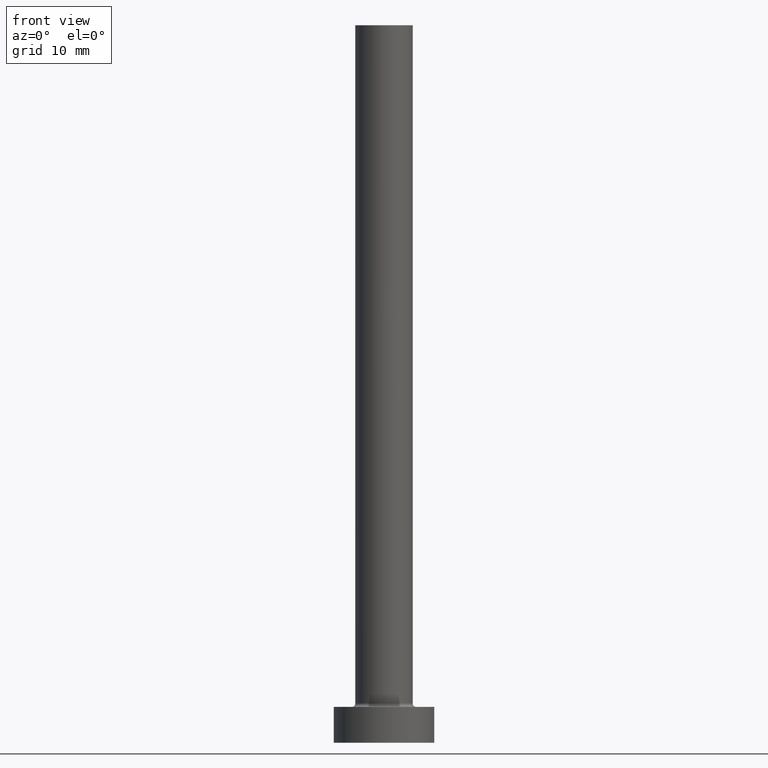
[diagram: clean part render]
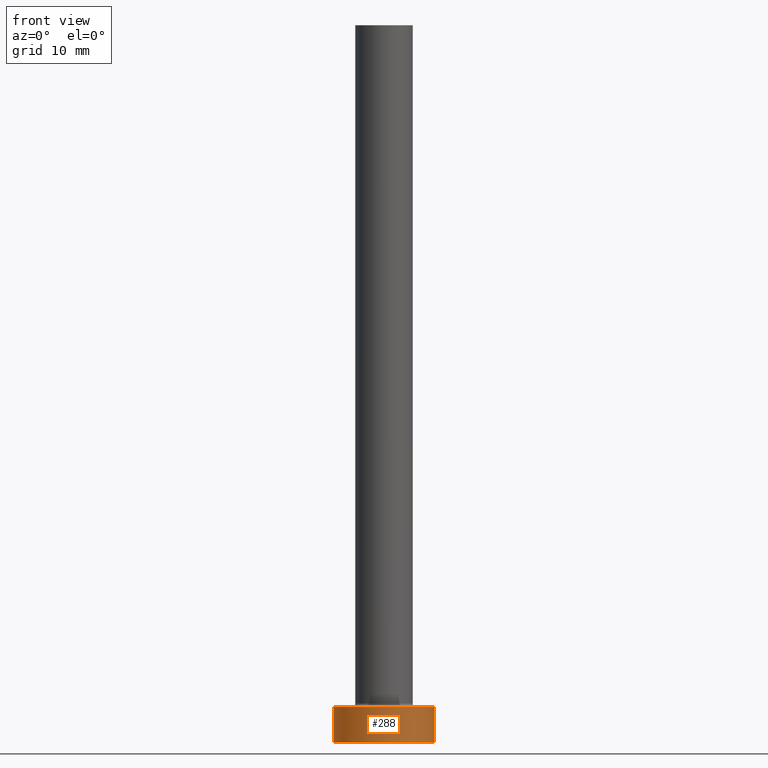
[diagram: same view with one face highlighted and labeled with its STEP entity id]
A machine part, front view. The second image highlights one B-rep face of the part: STEP entity #288.
In plain terms, the highlighted cylindrical surface (partial cylindrical patch) has radius 7 mm, axis along (-0, -0, -1).
Its self-contained STEP definition (entity closure, byte-faithful):
#5 = DIRECTION ( 'NONE',  ( -0.000000000000000000, -0.000000000000000000, -1.000000000000000000 ) ) ;
#10 = AXIS2_PLACEMENT_3D ( 'NONE', #457, #383, #198 ) ;
#19 = AXIS2_PLACEMENT_3D ( 'NONE', #378, #242, #78 ) ;
#22 = EDGE_LOOP ( 'NONE', ( #165, #113, #72, #306 ) ) ;
#27 = VECTOR ( 'NONE', #5, 1000.000000000000000 ) ;
#38 = CIRCLE ( 'NONE', #278, 7.000000000000000000 ) ;
#64 = DIRECTION ( 'NONE',  ( 0.000000000000000000, 0.000000000000000000, 1.000000000000000000 ) ) ;
#66 = EDGE_CURVE ( 'NONE', #237, #82, #185, .T. ) ;
#72 = ORIENTED_EDGE ( 'NONE', *, *, #66, .T. ) ;
#78 = DIRECTION ( 'NONE',  ( -1.000000000000000000, 0.000000000000000000, 0.000000000000000000 ) ) ;
#82 = VERTEX_POINT ( 'NONE', #425 ) ;
#88 = EDGE_CURVE ( 'NONE', #436, #223, #396, .T. ) ;
#102 = CARTESIAN_POINT ( 'NONE',  ( -7.000000000000000000, 0.000000000000000000, 5.000000000000000000 ) ) ;
#113 = ORIENTED_EDGE ( 'NONE', *, *, #230, .F. ) ;
#126 = CARTESIAN_POINT ( 'NONE',  ( 0.000000000000000000, 0.000000000000000000, 5.000000000000000000 ) ) ;
#147 = CYLINDRICAL_SURFACE ( 'NONE', #19, 7.000000000000000000 ) ;
#163 = EDGE_CURVE ( 'NONE', #82, #223, #217, .T. ) ;
#164 = DIRECTION ( 'NONE',  ( 1.000000000000000000, 0.000000000000000000, 0.000000000000000000 ) ) ;
#165 = ORIENTED_EDGE ( 'NONE', *, *, #88, .F. ) ;
#182 = DIRECTION ( 'NONE',  ( -0.000000000000000000, -0.000000000000000000, -1.000000000000000000 ) ) ;
#185 = LINE ( 'NONE', #395, #27 ) ;
#192 = VECTOR ( 'NONE', #182, 1000.000000000000000 ) ;
#198 = DIRECTION ( 'NONE',  ( 1.000000000000000000, 0.000000000000000000, 0.000000000000000000 ) ) ;
#217 = CIRCLE ( 'NONE', #10, 7.000000000000000000 ) ;
#223 = VERTEX_POINT ( 'NONE', #433 ) ;
#230 = EDGE_CURVE ( 'NONE', #237, #436, #38, .T. ) ;
#237 = VERTEX_POINT ( 'NONE', #102 ) ;
#242 = DIRECTION ( 'NONE',  ( -0.000000000000000000, -0.000000000000000000, -1.000000000000000000 ) ) ;
#278 = AXIS2_PLACEMENT_3D ( 'NONE', #126, #64, #164 ) ;
#288 = ADVANCED_FACE ( 'NONE', ( #448 ), #147, .T. ) ;
#306 = ORIENTED_EDGE ( 'NONE', *, *, #163, .T. ) ;
#324 = CARTESIAN_POINT ( 'NONE',  ( 7.000000000000000000, 8.572527594031473190E-16, 5.000000000000000000 ) ) ;
#378 = CARTESIAN_POINT ( 'NONE',  ( 0.000000000000000000, 0.000000000000000000, 5.000000000000000000 ) ) ;
#383 = DIRECTION ( 'NONE',  ( 0.000000000000000000, 0.000000000000000000, 1.000000000000000000 ) ) ;
#386 = CARTESIAN_POINT ( 'NONE',  ( 7.000000000000000000, 8.572527594031473190E-16, 5.000000000000000000 ) ) ;
#395 = CARTESIAN_POINT ( 'NONE',  ( -7.000000000000000000, 0.000000000000000000, 5.000000000000000000 ) ) ;
#396 = LINE ( 'NONE', #386, #192 ) ;
#425 = CARTESIAN_POINT ( 'NONE',  ( -7.000000000000000000, 0.000000000000000000, 0.000000000000000000 ) ) ;
#433 = CARTESIAN_POINT ( 'NONE',  ( 7.000000000000000000, 8.572527594031473190E-16, 0.000000000000000000 ) ) ;
#436 = VERTEX_POINT ( 'NONE', #324 ) ;
#448 = FACE_OUTER_BOUND ( 'NONE', #22, .T. ) ;
#457 = CARTESIAN_POINT ( 'NONE',  ( 0.000000000000000000, 0.000000000000000000, 0.000000000000000000 ) ) ;